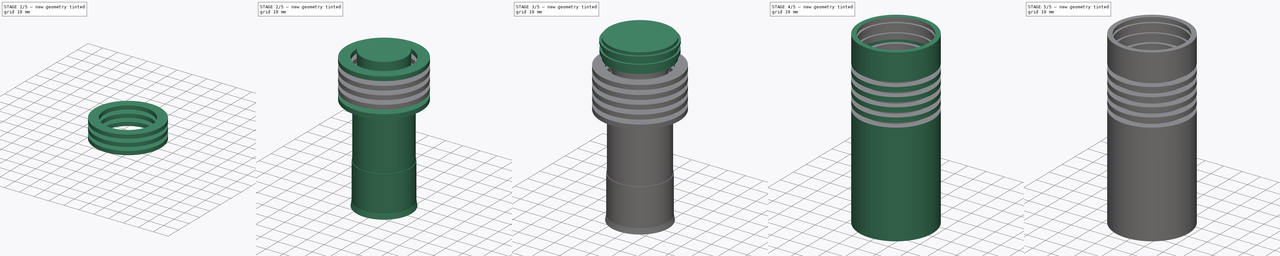
[diagram: build sequence overview — one tinted view per stage of 5, left to right]
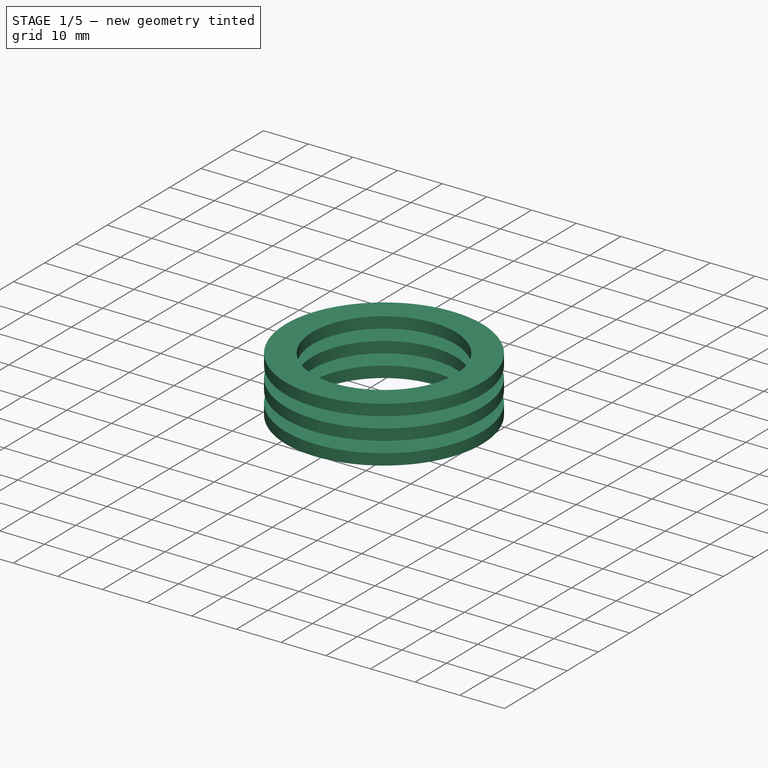
[diagram: stage 1 of 5 — iso view after this stage's code; geometry added in this stage tinted green]
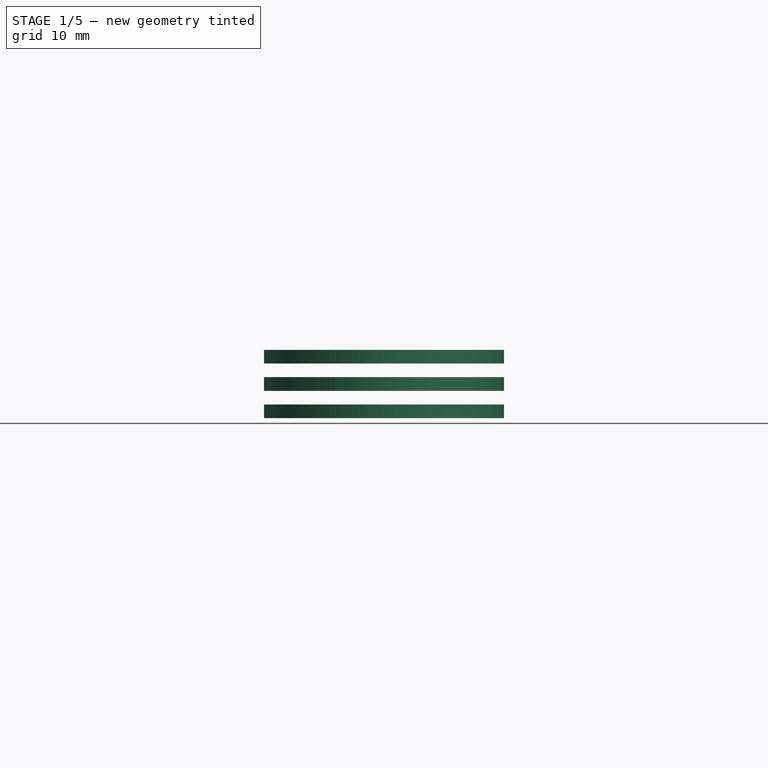
[diagram: stage 1 of 5 — front view after this stage's code; geometry added in this stage tinted green]
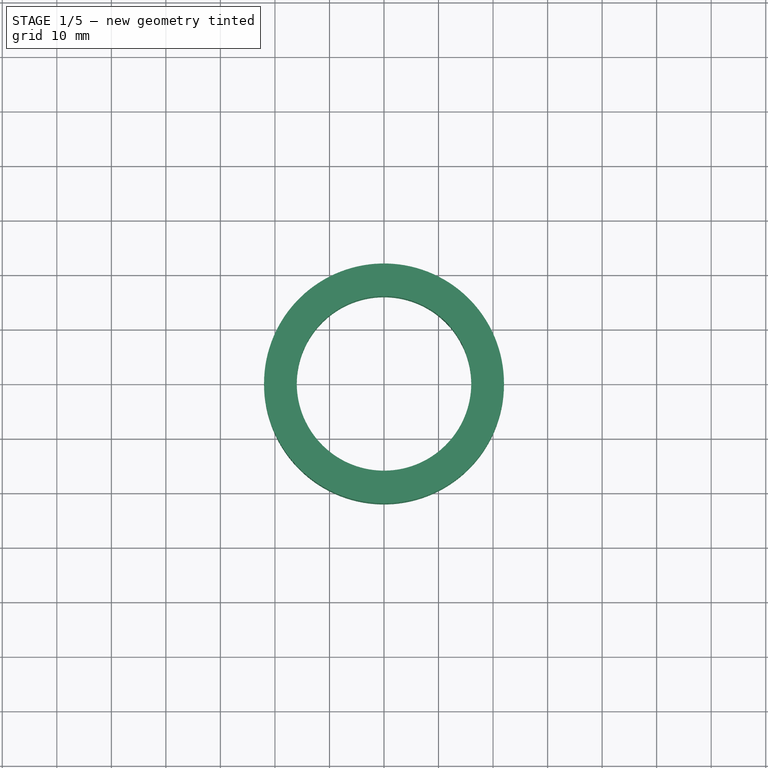
[diagram: stage 1 of 5 — top view after this stage's code; geometry added in this stage tinted green]
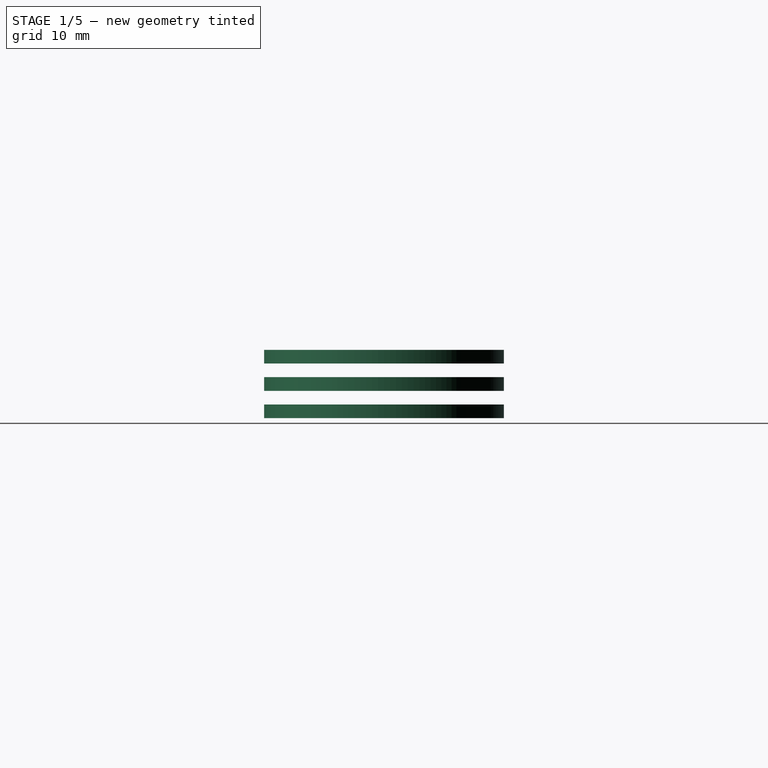
[diagram: stage 1 of 5 — right view after this stage's code; geometry added in this stage tinted green]
FCSTD DOCUMENT  (FreeCAD 0.15R4196 (Git))
Label: Lampenkopf-Backup
License: CC-BY 3.0
LicenseURL: http://creativecommons.org/licenses/by/3.0/
objects: Sketcher::SketchObject×12, PartDesign::Pad×11, Part::Fuse×8, App::DocumentObjectGroup×4, Part::Cylinder×3, Part::Cone×1, Part::Helix×1, Part::Sweep×1, Part::Cut×1
note: 49 computed .brp shape members not serialized (recipe doc carries the construction recipe); baked Part::Feature solids carry a one-line shape summary decoded from their .brp

FEATURE [Sketcher::SketchObject] Sketch005
  Placement = pos=(0,0,66) rot=(0,0,1;0rad)
  sketch-geometry (2):
    g0: Circle CenterX=0 CenterY=0 CenterZ=0 NormalX=0 NormalY=0 NormalZ=1 Radius=16
    g1: Circle CenterX=0 CenterY=0 CenterZ=0 NormalX=0 NormalY=0 NormalZ=1 Radius=22
  constraints (4):
    c: Coincident(g1,g0)
    c: Radius(g0) = 16
    c: Radius(g1) = 22
    c: Coincident(g0,g-1)
FEATURE [PartDesign::Pad] Pad005  label="Kuehlrippe 1"
  Length = 2.5
  Length2 = 100
  Placement = pos=(0,0,66) rot=(0,0,1;0rad)
  Sketch = -> Sketch005
  Type = 0
FEATURE [Sketcher::SketchObject] Sketch006
  Placement = pos=(0,0,71) rot=(0,0,1;0rad)
  sketch-geometry (2):
    g0: Circle CenterX=0 CenterY=0 CenterZ=0 NormalX=0 NormalY=0 NormalZ=1 Radius=16
    g1: Circle CenterX=0 CenterY=0 CenterZ=0 NormalX=0 NormalY=0 NormalZ=1 Radius=22
  constraints (4):
    c: Coincident(g1,g0)
    c: Radius(g0) = 16
    c: Radius(g1) = 22
    c: Coincident(g0,g-1)
FEATURE [PartDesign::Pad] Pad006  label="Kuehlrippe 2"
  Length = 2.5
  Length2 = 100
  Placement = pos=(0,0,71) rot=(0,0,1;0rad)
  Sketch = -> Sketch006
  Type = 0
FEATURE [Sketcher::SketchObject] Sketch007
  Placement = pos=(0,0,61) rot=(0,0,1;0rad)
  sketch-geometry (2):
    g0: Circle CenterX=0 CenterY=0 CenterZ=0 NormalX=0 NormalY=0 NormalZ=1 Radius=16
    g1: Circle CenterX=0 CenterY=0 CenterZ=0 NormalX=0 NormalY=0 NormalZ=1 Radius=22
  constraints (4):
    c: Coincident(g1,g0)
    c: Radius(g0) = 16
    c: Radius(g1) = 22
    c: Coincident(g0,g-1)
FEATURE [PartDesign::Pad] Pad007  label="Kuehlrippe 3"
  Length = 2.5
  Length2 = 100
  Placement = pos=(0,0,61) rot=(0,0,1;0rad)
  Sketch = -> Sketch007
  Type = 0
FEATURE [App::DocumentObjectGroup] Group001  label="Innenraum-Komponenten"
  Group = -> [Pad,Pad001,Helix,Pad003]
FEATURE [App::DocumentObjectGroup] Group002  label="Kühlung"
  Group = -> [Pad010,Pad007,Pad008,Pad006,Pad005]
FEATURE [Part::Fuse] Fusion
  Base = -> Pad005
  Tool = -> Pad006
FEATURE [Part::Fuse] Fusion001
  Base = -> Fusion
  Tool = -> Pad007
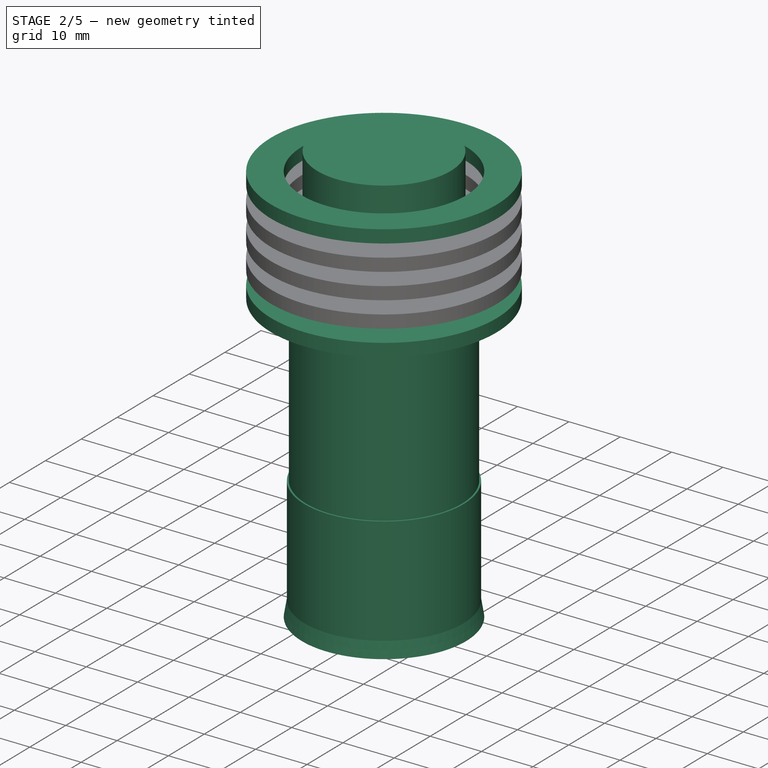
[diagram: stage 2 of 5 — iso view after this stage's code; geometry added in this stage tinted green]
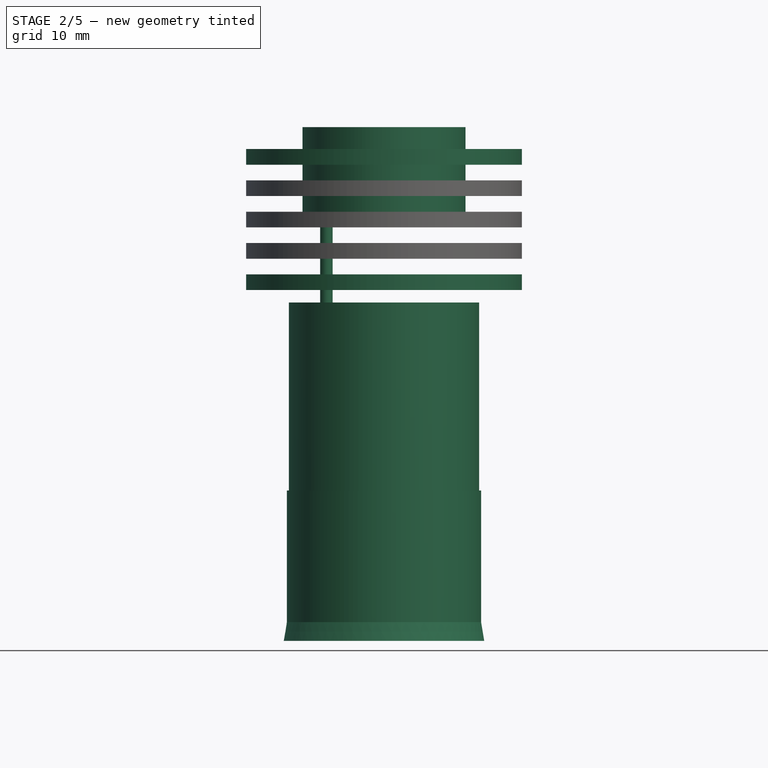
[diagram: stage 2 of 5 — front view after this stage's code; geometry added in this stage tinted green]
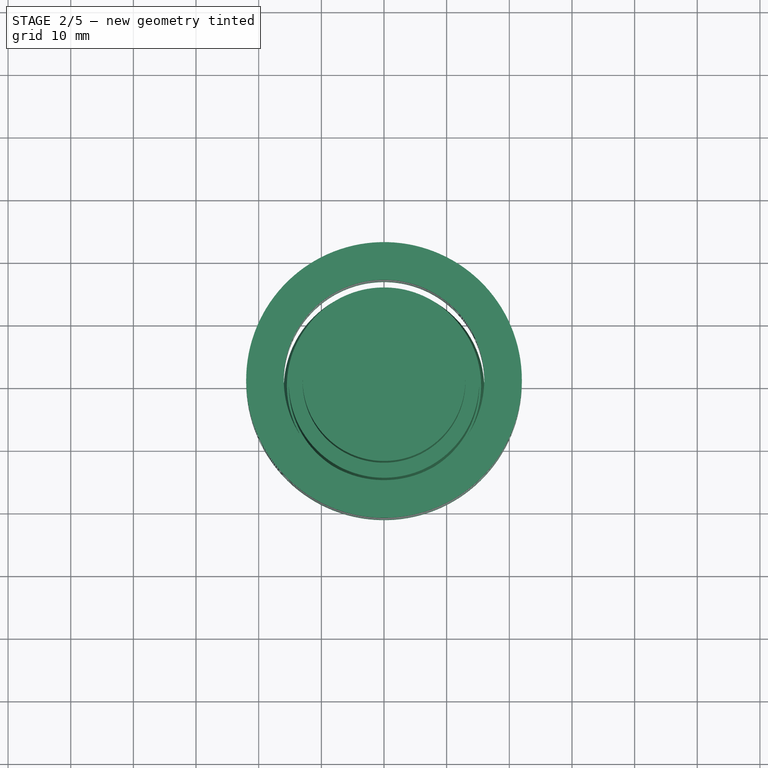
[diagram: stage 2 of 5 — top view after this stage's code; geometry added in this stage tinted green]
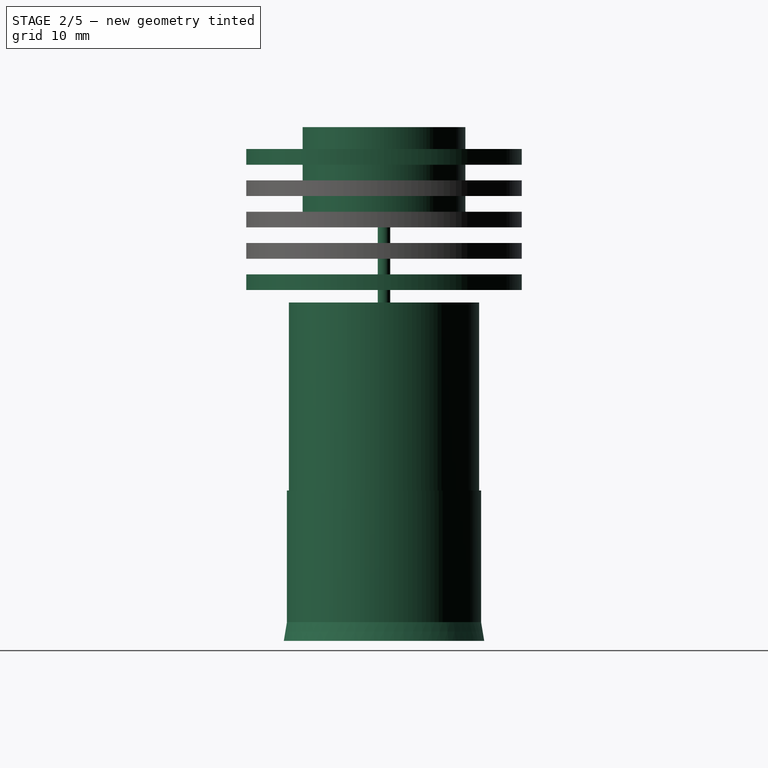
[diagram: stage 2 of 5 — right view after this stage's code; geometry added in this stage tinted green]
FEATURE [Sketcher::SketchObject] Sketch003
  Placement = pos=(0,0,66) rot=(0,0,1;0rad)
  sketch-geometry (1):
    g0: Circle CenterX=0 CenterY=0 CenterZ=0 NormalX=0 NormalY=0 NormalZ=1 Radius=13
  constraints (2):
    c: Radius(g0) = 13
    c: Coincident(g0,g-1)
FEATURE [PartDesign::Pad] Pad003  label="Raum Reflektor und LED"
  Length = 16
  Length2 = 100
  Sketch = -> Sketch003
  Type = 0
FEATURE [Sketcher::SketchObject] Sketch008
  Placement = pos=(0,0,56) rot=(0,0,1;0rad)
  sketch-geometry (2):
    g0: Circle CenterX=0 CenterY=0 CenterZ=0 NormalX=0 NormalY=0 NormalZ=1 Radius=16
    g1: Circle CenterX=0 CenterY=0 CenterZ=0 NormalX=0 NormalY=0 NormalZ=1 Radius=22
  constraints (4):
    c: Coincident(g1,g0)
    c: Radius(g0) = 16
    c: Radius(g1) = 22
    c: Coincident(g0,g-1)
FEATURE [PartDesign::Pad] Pad008  label="Kuehlrippe 4"
  Length = 2.5
  Length2 = 100
  Placement = pos=(0,0,56) rot=(0,0,1;0rad)
  Sketch = -> Sketch008
  Type = 0
FEATURE [Sketcher::SketchObject] Sketch010
  Placement = pos=(0,0,76) rot=(0,0,1;0rad)
  sketch-geometry (2):
    g0: Circle CenterX=0 CenterY=0 CenterZ=0 NormalX=0 NormalY=0 NormalZ=1 Radius=16
    g1: Circle CenterX=0 CenterY=0 CenterZ=0 NormalX=0 NormalY=0 NormalZ=1 Radius=22
  constraints (4):
    c: Coincident(g1,g0)
    c: Radius(g0) = 16
    c: Radius(g1) = 22
    c: Coincident(g0,g-1)
FEATURE [PartDesign::Pad] Pad010  label="Kuehlrippe 6"
  Length = 2.5
  Length2 = 100
  Placement = pos=(0,0,76) rot=(0,0,1;0rad)
  Sketch = -> Sketch010
  Type = 0
FEATURE [Part::Fuse] Fusion002
  Base = -> Fusion001
  Tool = -> Pad008
FEATURE [Part::Fuse] Fusion003  label="Fusion-Kühlrippen"
  Base = -> Fusion002
  Tool = -> Pad010
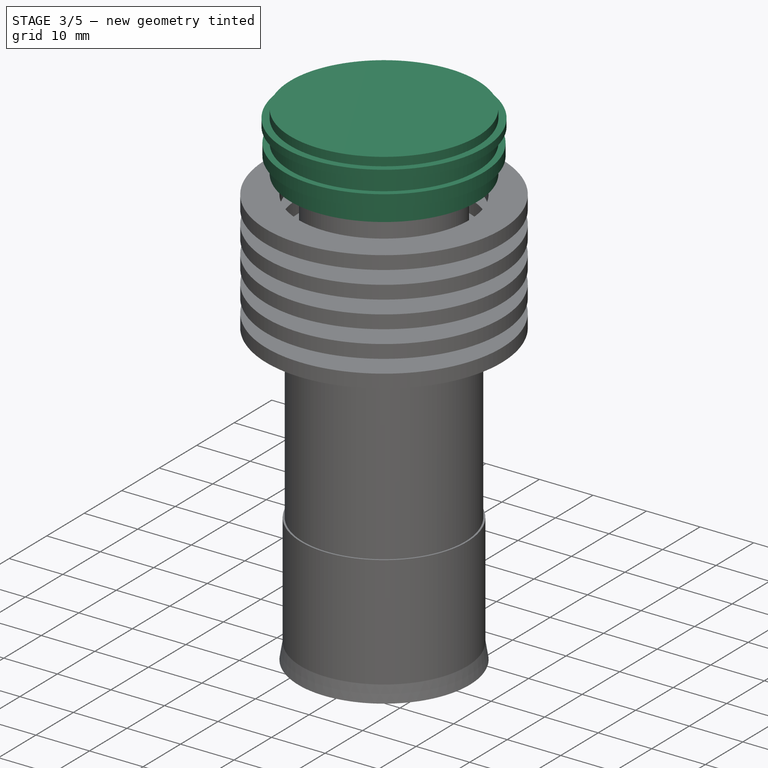
[diagram: stage 3 of 5 — iso view after this stage's code; geometry added in this stage tinted green]
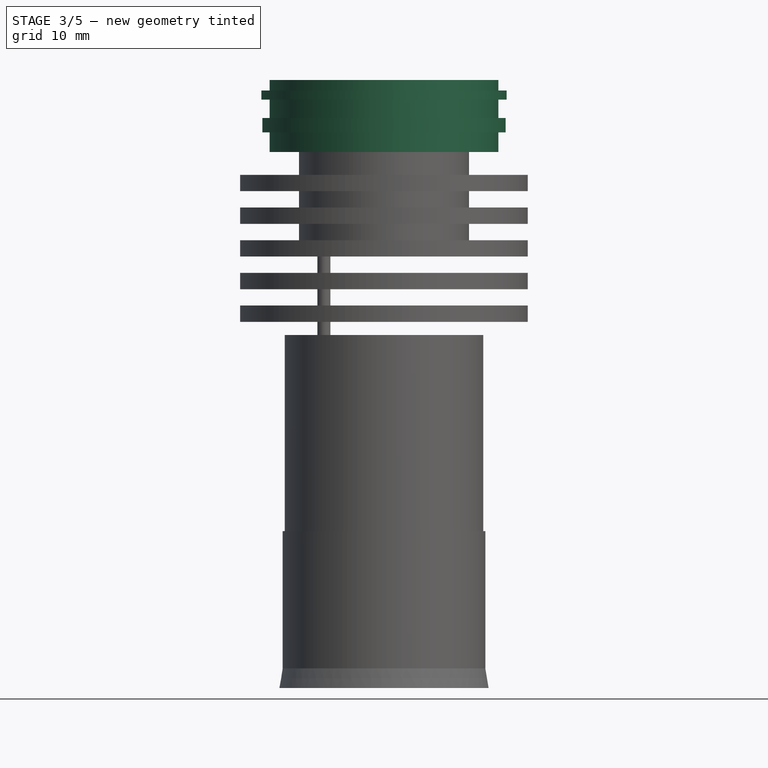
[diagram: stage 3 of 5 — front view after this stage's code; geometry added in this stage tinted green]
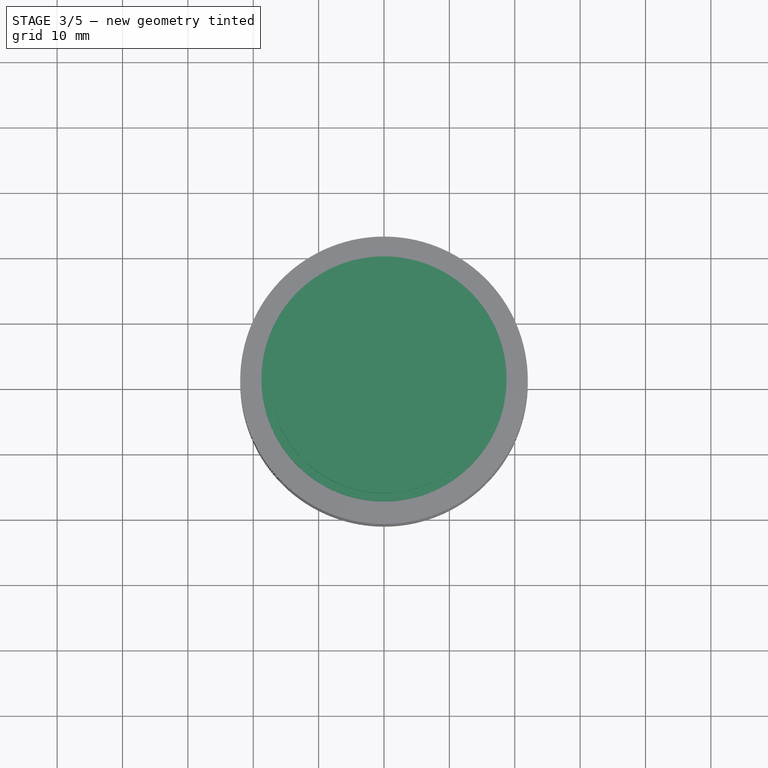
[diagram: stage 3 of 5 — top view after this stage's code; geometry added in this stage tinted green]
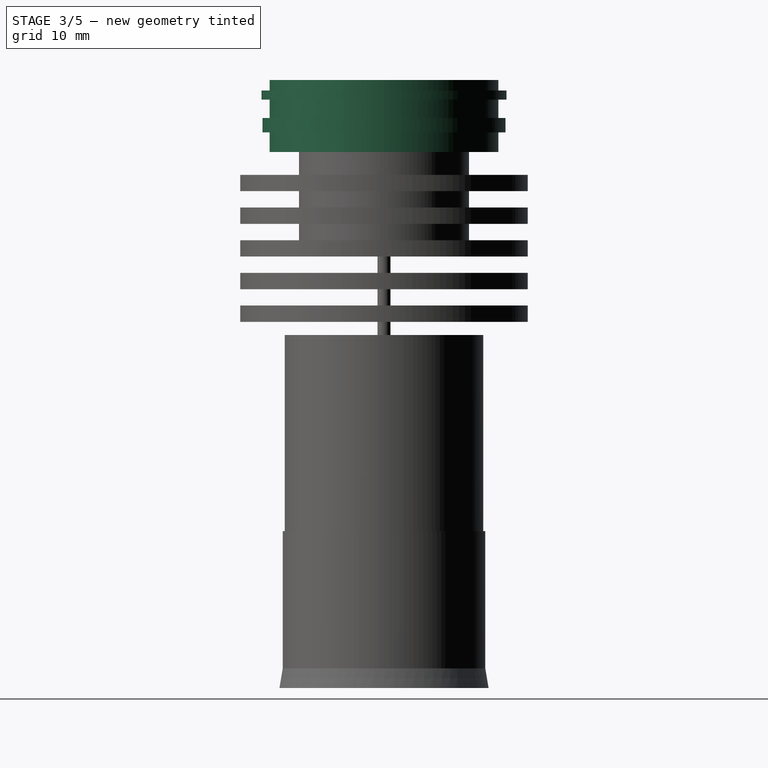
[diagram: stage 3 of 5 — right view after this stage's code; geometry added in this stage tinted green]
FEATURE [Sketcher::SketchObject] Sketch004
  ExternalGeometry = -> [Pad003]
  Placement = pos=(0,0,82) rot=(0,0,1;0rad)
  Support = -> Pad003 [Face3]
  sketch-geometry (1):
    g0: Circle CenterX=0 CenterY=0 CenterZ=0 NormalX=0 NormalY=0 NormalZ=1 Radius=17.5
  constraints (2):
    c: Radius(g0) = 17.5
    c: Coincident(g0,g-1)
FEATURE [PartDesign::Pad] Pad004  label="Raum Glas"
  Length = 11
  Length2 = 100
  Sketch = -> Sketch004
  Type = 0
FEATURE [Part::Cylinder] Cylinder001  label="Nut Radial"
  Angle = 360
  Height = 2.2
  Placement = pos=(0,0,85) rot=(0,0,1;0rad)
  Radius = 18.6
FEATURE [Part::Cylinder] Cylinder002  label="Nut Sprengring RB35"
  Angle = 360
  Height = 1.4
  Placement = pos=(0,0,90) rot=(0,0,1;0rad)
  Radius = 18.75
FEATURE [Part::Fuse] Fusion004
  Base = -> Cylinder002
  Tool = -> Cylinder001
FEATURE [App::DocumentObjectGroup] Group003  label="Nuten Glasaufnahme"
  Group = -> [Pad011,Cylinder001,Cylinder002]
FEATURE [Part::Fuse] Fusion006
  Base = -> Pad004
  Tool = -> Fusion003
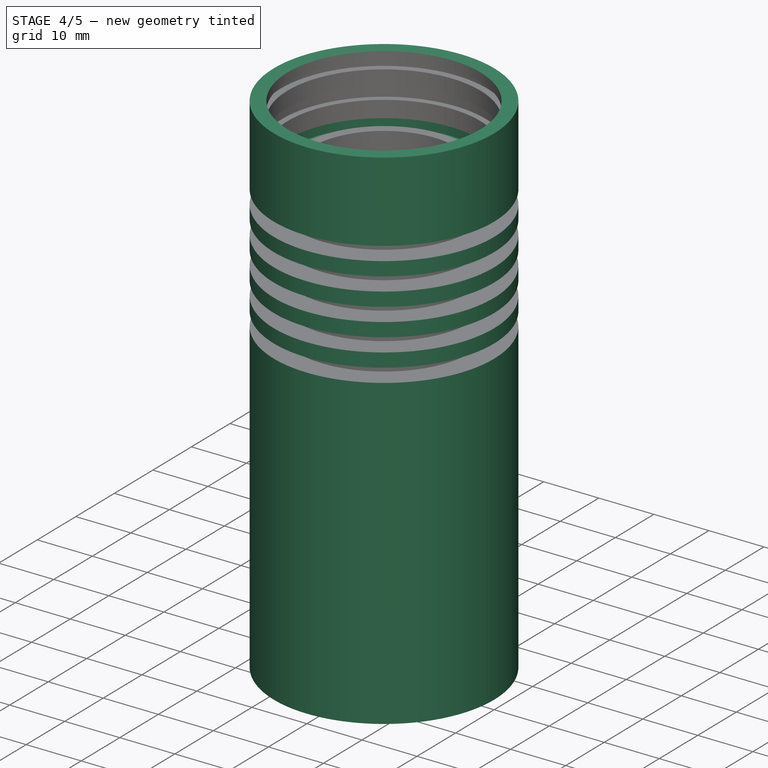
[diagram: stage 4 of 5 — iso view after this stage's code; geometry added in this stage tinted green]
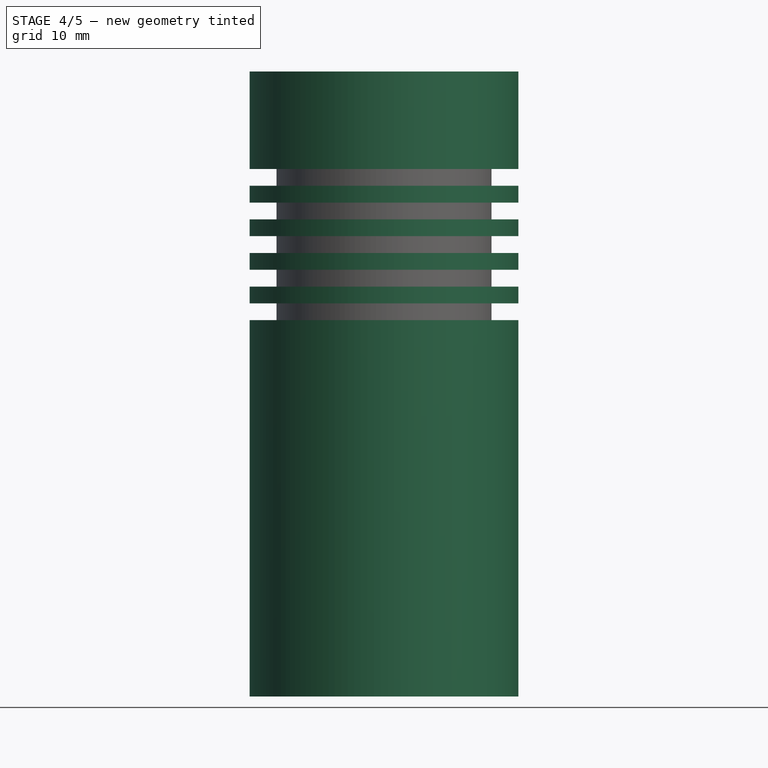
[diagram: stage 4 of 5 — front view after this stage's code; geometry added in this stage tinted green]
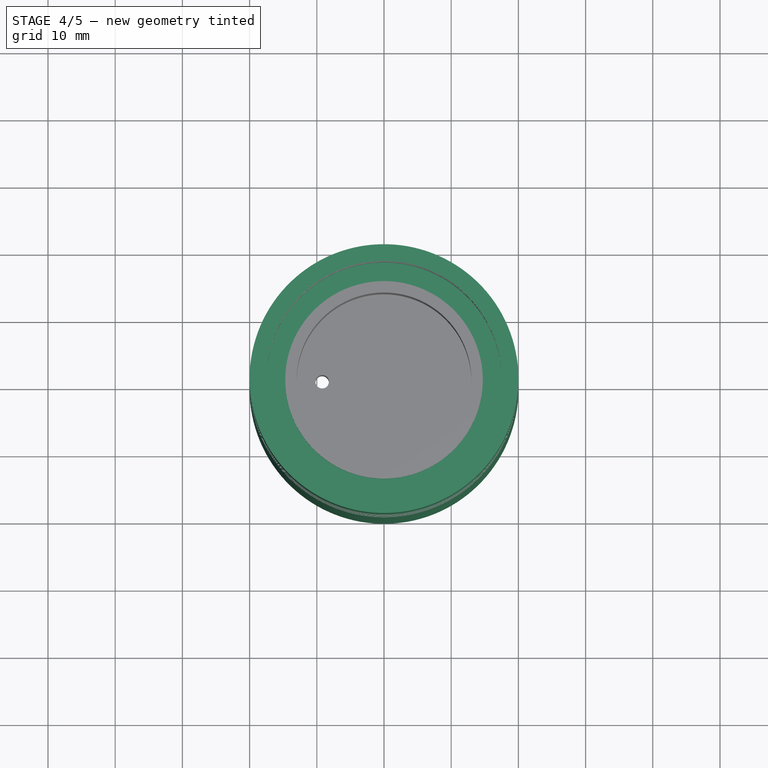
[diagram: stage 4 of 5 — top view after this stage's code; geometry added in this stage tinted green]
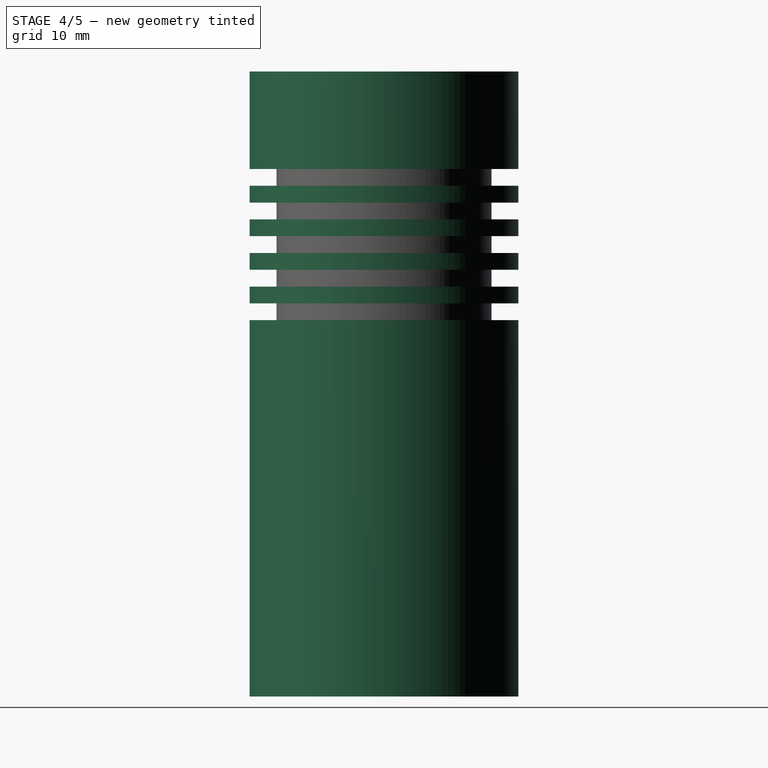
[diagram: stage 4 of 5 — right view after this stage's code; geometry added in this stage tinted green]
FEATURE [Part::Cylinder] Cylinder  label="Material"
  Angle = 360
  Height = 93
  Radius = 20
FEATURE [Sketcher::SketchObject] Sketch014
  Placement = pos=(0,0,80.5) rot=(0,0,1;0rad)
  sketch-geometry (2):
    g0: Circle CenterX=0 CenterY=0 CenterZ=0 NormalX=0 NormalY=0 NormalZ=1 Radius=17.5
    g1: Circle CenterX=0 CenterY=0 CenterZ=0 NormalX=0 NormalY=0 NormalZ=1 Radius=14.7
  constraints (4):
    c: Coincident(g1,g0)
    c: Radius(g1) = 14.7
    c: Radius(g0) = 17.5
    c: Coincident(g0,g-1)
FEATURE [PartDesign::Pad] Pad011  label="Nut Axial001"
  Length = 1.5
  Length2 = 100
  Placement = pos=(0,0,80.5) rot=(0,0,1;0rad)
  Sketch = -> Sketch014
  Type = 0
FEATURE [Part::Fuse] Fusion005  label="Fusion-Nuten Glaskoerper"
  Base = -> Fusion004
  Tool = -> Pad011
FEATURE [Part::Fuse] Fusion007  label="Fusion-Innenraum ohne Gewinde"
  Base = -> Fusion006
  Tool = -> Fusion005
FEATURE [App::DocumentObjectGroup] Group  label="Ausschneiden"
  Group = -> [Sweep,Group001,Cone001,Pad004,Group002,Pad002,Fusion003,Fusion005,Group003,Fusion007]
FEATURE [Part::Cut] Cut  label="Gehäuse ohne Gewinde"
  Base = -> Cylinder
  Tool = -> Fusion007
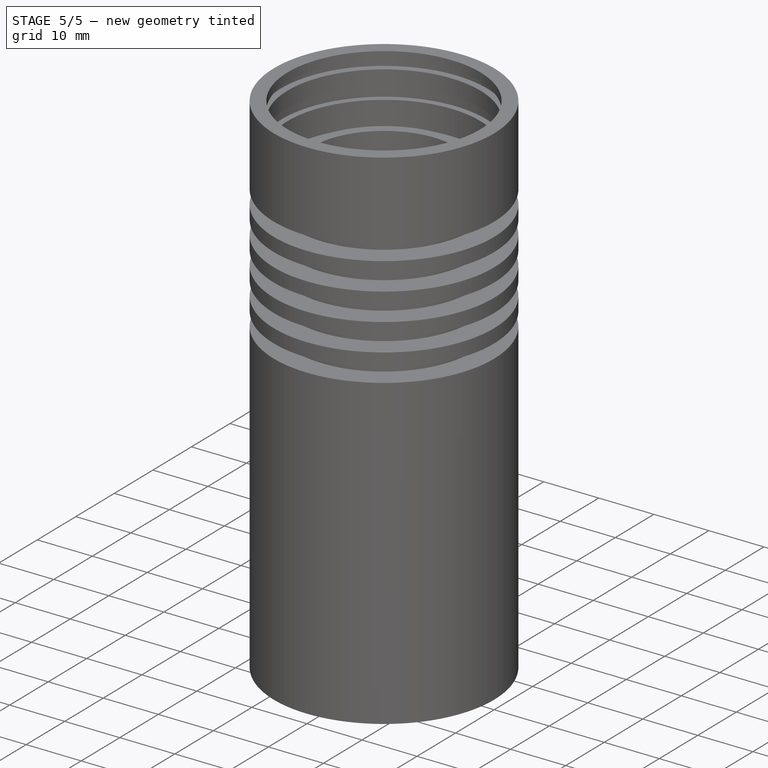
[diagram: stage 5 of 5 — iso view after this stage's code; geometry added in this stage tinted green]
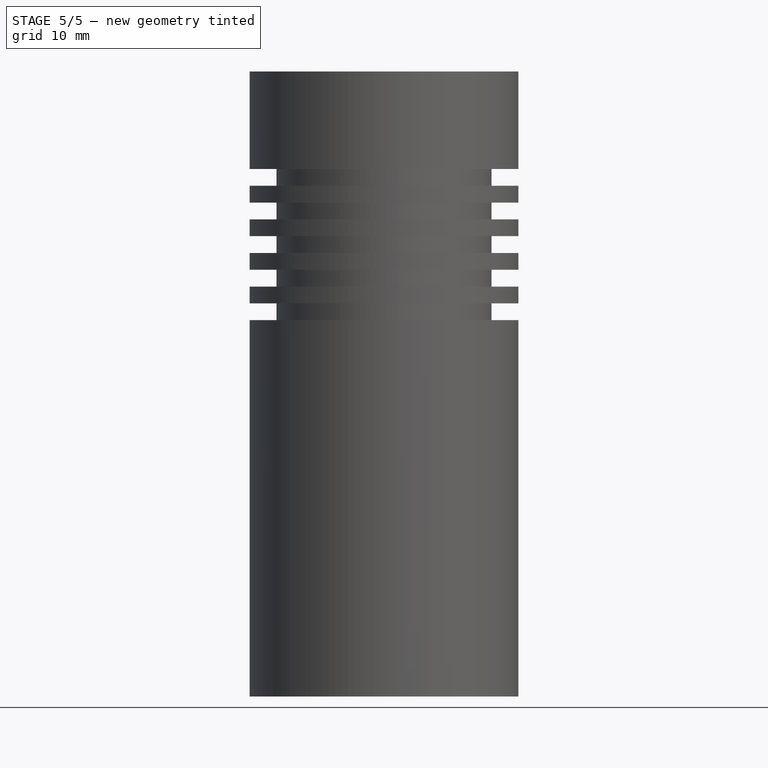
[diagram: stage 5 of 5 — front view after this stage's code; geometry added in this stage tinted green]
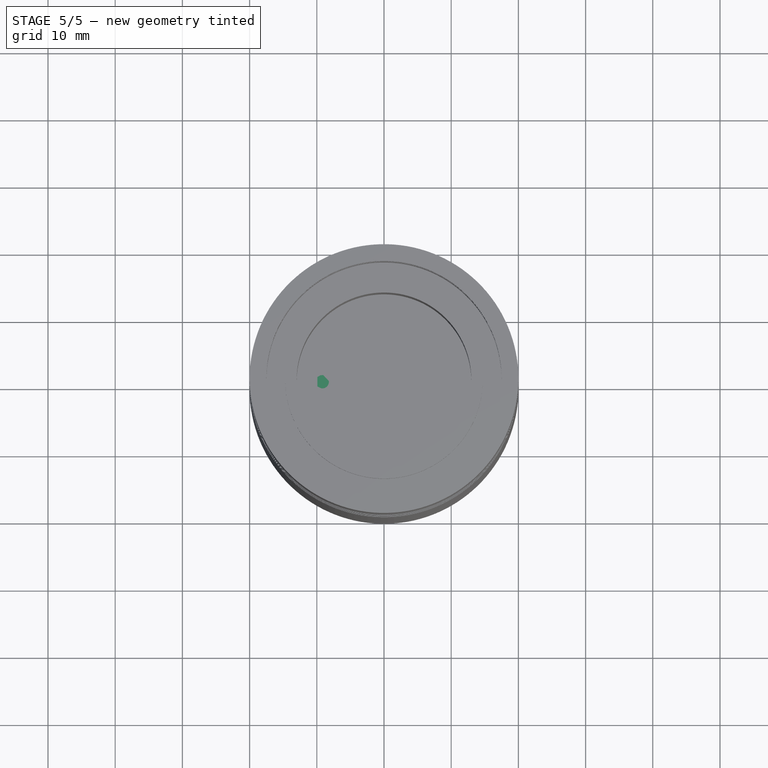
[diagram: stage 5 of 5 — top view after this stage's code; geometry added in this stage tinted green]
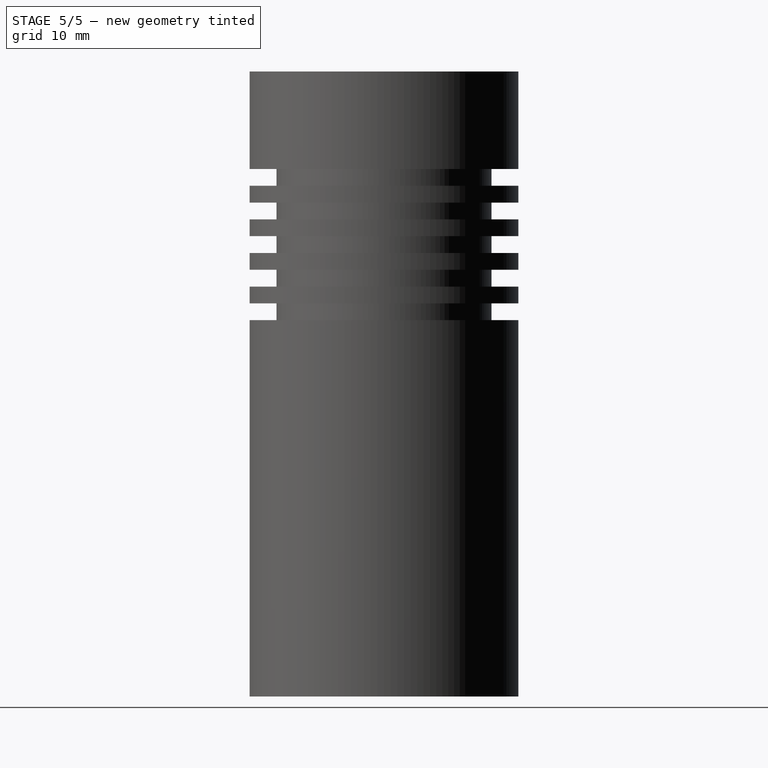
[diagram: stage 5 of 5 — right view after this stage's code; geometry added in this stage tinted green]
FEATURE [Sketcher::SketchObject] Sketch
  sketch-geometry (1):
    g0: Circle CenterX=0 CenterY=0 CenterZ=0 NormalX=0 NormalY=0 NormalZ=1 Radius=16.8
  constraints (2):
    c: Coincident(g0,g-1)
    c: Radius(g0) = 16.8
FEATURE [PartDesign::Pad] Pad  label="Aufnahme ORinge"
  Length = 24
  Length2 = 100
  Sketch = -> Sketch
  Type = 0
FEATURE [Sketcher::SketchObject] Sketch001
  Placement = pos=(0,0,24) rot=(0,0,1;0rad)
  Support = -> Pad [Face3]
  sketch-geometry (1):
    g0: Circle CenterX=0 CenterY=0 CenterZ=0 NormalX=0 NormalY=0 NormalZ=1 Radius=15.19
  constraints (2):
    c: Coincident(g0,g-1)
    c: Radius(g0) = 15.19
FEATURE [PartDesign::Pad] Pad001  label="InnenGewinde"
  Length = 30
  Length2 = 100
  Sketch = -> Sketch001
  Type = 0
FEATURE [Sketcher::SketchObject] Sketch002
  Placement = pos=(0,0,54) rot=(0,0,1;0rad)
  Support = -> Pad001 [Face5]
  sketch-geometry (1):
    g0: Circle CenterX=-9.2 CenterY=0 CenterZ=0 NormalX=0 NormalY=0 NormalZ=1 Radius=1
  constraints (3):
    c: PointOnObject(g0,g-1)
    c: Radius(g0) = 1
    c: DistanceX(g-1,g0) = -9.2
FEATURE [PartDesign::Pad] Pad002  label="Bohrung Kabeldurchführung"
  Length = 12
  Length2 = 100
  Sketch = -> Sketch002
  Type = 0
FEATURE [Part::Cone] Cone001  label="Anfasung unten"
  Angle = 360
  Height = 3
  Radius1 = 17.8
  Radius2 = 16.8
FEATURE [Part::Helix] Helix
  Angle = 0
  Height = 40
  LocalCoord = 0
  Pitch = 1.5
  Radius = 15.19
  Style = 1
FEATURE [Sketcher::SketchObject] Sketch013
  Placement = pos=(0,0,-10) rot=(0.57735,0.57735,0.57735;2.0944rad)
  sketch-geometry (3):
    g0: LineSegment StartX=15.19 StartY=0.75 StartZ=0 EndX=15.19 EndY=-0.75 EndZ=0
    g1: LineSegment StartX=15.19 StartY=-0.75 StartZ=0 EndX=16.489 EndY=0 EndZ=0
    g2: LineSegment StartX=16.489 StartY=0 StartZ=0 EndX=15.19 EndY=0.75 EndZ=0
  constraints (9):
    c: Vertical(g0)
    c: Coincident(g0,g1)
    c: PointOnObject(g1,g-1)
    c: Coincident(g1,g2)
    c: Coincident(g2,g0)
    c: Equal(g2,g1)
    c: Angle(g2,g1) = 1.0472
    c: DistanceX(g-1,g0) = 15.19
    c: DistanceY(g0) = -1.5
FEATURE [Part::Sweep] Sweep  label="Innengewinde"
  Frenet = true
  Placement = pos=(0,0,24) rot=(0,0,1;0rad)
  Sections = -> [Sketch013]
  Solid = true
  Spine = -> Helix [Edge1]
  Transition = 1
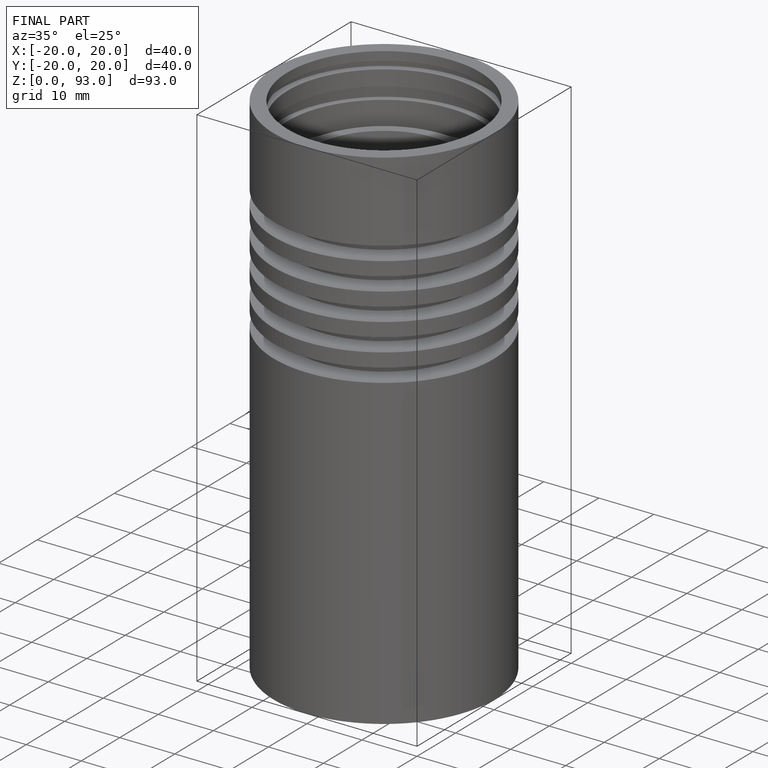
[diagram: finished part — iso view with bounding-box wireframe]
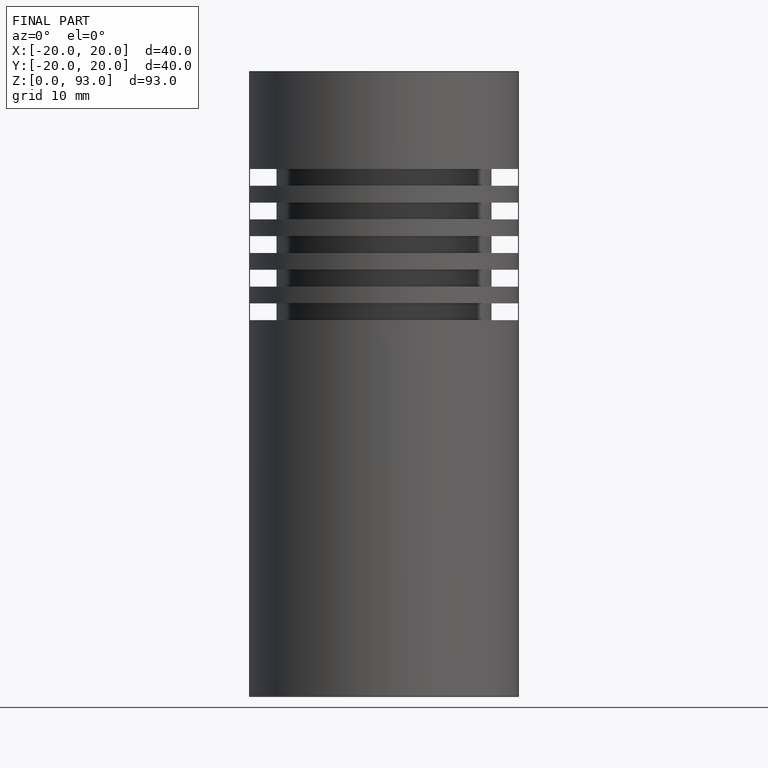
[diagram: finished part — front view with bounding-box wireframe]
